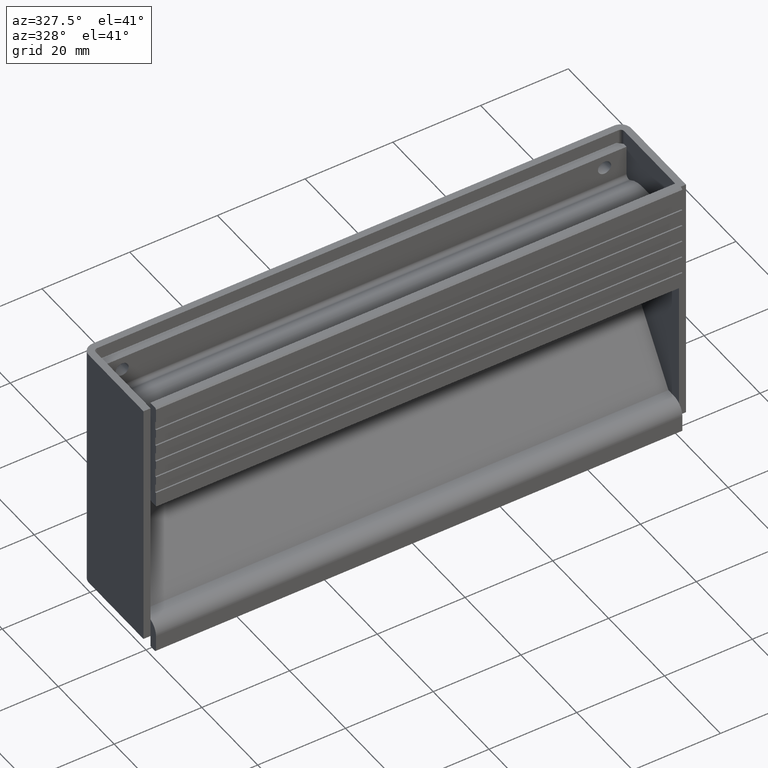
[diagram: clean part render]
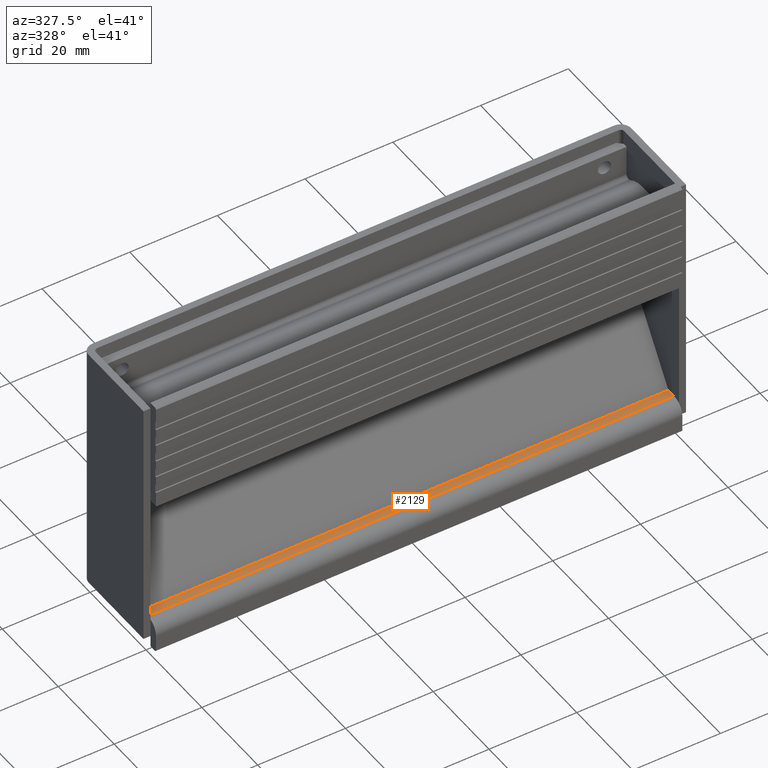
[diagram: same view with one face highlighted and labeled with its STEP entity id]
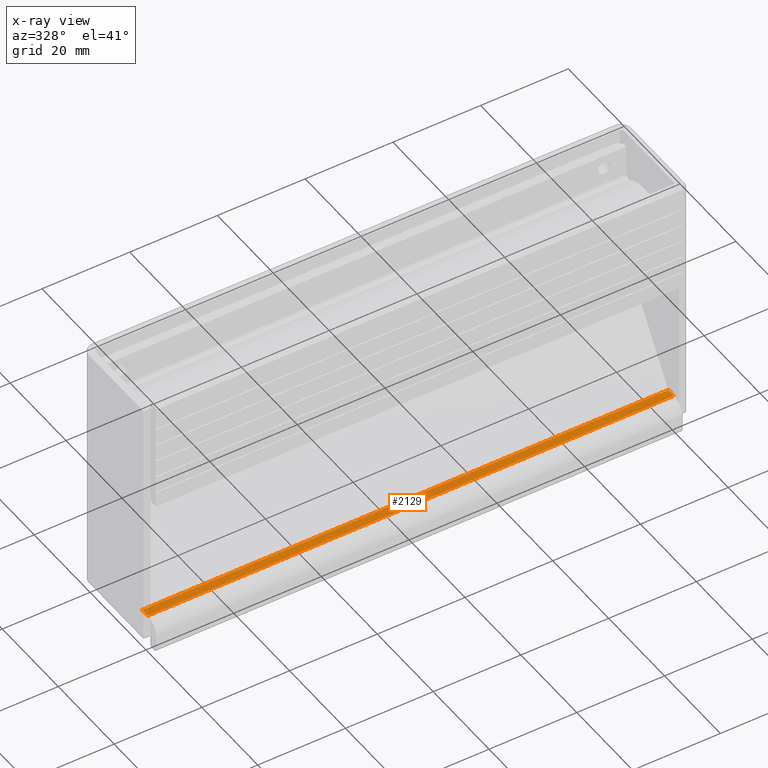
[diagram: x-ray of the same camera — body ghosted, the highlighted face saturated]
A machine part, auxiliary view. The second image highlights one B-rep face of the part: STEP entity #2129.
The next image is the same camera in x-ray: the body ghosted, the highlighted face saturated — about 0% of this face is hidden behind the body in this view.
In plain terms, the highlighted face is a freeform B-spline surface patch.
Its self-contained STEP definition (entity closure, byte-faithful):
#1233=CARTESIAN_POINT('',(60.0,3.0,7.0));
#1234=VERTEX_POINT('',#1233);
#1240=CARTESIAN_POINT('',(60.0,1.0,7.0));
#1241=VERTEX_POINT('',#1240);
#1242=CARTESIAN_POINT('',(60.0,3.0,7.0));
#1243=CARTESIAN_POINT('',(60.0,1.0,7.0));
#1244=QUASI_UNIFORM_CURVE('',1,(#1242,#1243),.UNSPECIFIED.,.F.,.U.);
#1245=EDGE_CURVE('',#1234,#1241,#1244,.T.);
#1438=CARTESIAN_POINT('',(-60.0,1.0,7.0));
#1439=VERTEX_POINT('',#1438);
#1453=CARTESIAN_POINT('',(-60.0,3.0,7.0));
#1454=VERTEX_POINT('',#1453);
#1455=CARTESIAN_POINT('',(-60.0,3.0,7.0));
#1456=CARTESIAN_POINT('',(-60.0,1.0,7.0));
#1457=QUASI_UNIFORM_CURVE('',1,(#1455,#1456),.UNSPECIFIED.,.F.,.U.);
#1458=EDGE_CURVE('',#1454,#1439,#1457,.T.);
#2104=CARTESIAN_POINT('',(-60.0,1.0,7.0));
#2105=CARTESIAN_POINT('',(60.0,1.0,7.0));
#2106=QUASI_UNIFORM_CURVE('',1,(#2104,#2105),.UNSPECIFIED.,.F.,.U.);
#2107=EDGE_CURVE('',#1439,#1241,#2106,.T.);
#2114=CARTESIAN_POINT('',(-65.993999767416710,0.900100003876388,7.0));
#2115=CARTESIAN_POINT('',(65.994002986067542,0.900100003876388,7.0));
#2116=CARTESIAN_POINT('',(-65.993999767416710,3.099900049767792,7.0));
#2117=CARTESIAN_POINT('',(65.994002986067542,3.099900049767792,7.0));
#2118=B_SPLINE_SURFACE_WITH_KNOTS('',1,1,((#2114,#2116),(#2115,#2117)),.UNSPECIFIED.,.F.,.F.,.U.,(2,2),(2,2),(0.0,131.988002753484210),(0.0,2.199800045891404),.UNSPECIFIED.);
#2119=ORIENTED_EDGE('',*,*,#1245,.F.);
#2120=CARTESIAN_POINT('',(-60.0,3.0,7.0));
#2121=CARTESIAN_POINT('',(60.0,3.0,7.0));
#2122=QUASI_UNIFORM_CURVE('',1,(#2120,#2121),.UNSPECIFIED.,.F.,.U.);
#2123=EDGE_CURVE('',#1454,#1234,#2122,.T.);
#2124=ORIENTED_EDGE('',*,*,#2123,.F.);
#2125=ORIENTED_EDGE('',*,*,#1458,.T.);
#2126=ORIENTED_EDGE('',*,*,#2107,.T.);
#2127=EDGE_LOOP('',(#2119,#2124,#2125,#2126));
#2128=FACE_OUTER_BOUND('',#2127,.T.);
#2129=ADVANCED_FACE('',(#2128),#2118,.T.);